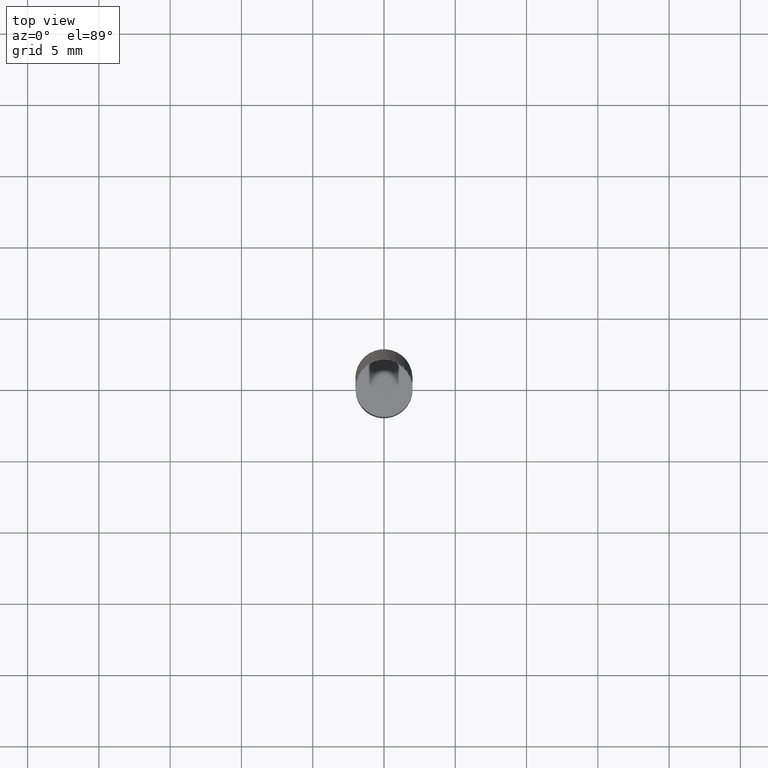
[diagram: clean part render]
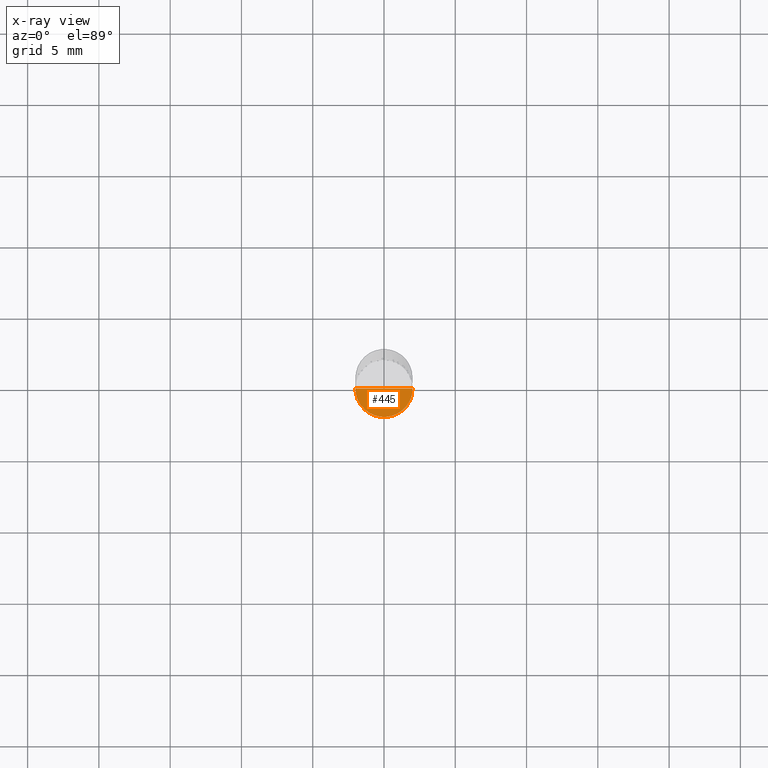
[diagram: x-ray — body ghosted, one internal face saturated and labeled with its STEP entity id]
A machine part, top view, then the same camera in x-ray: the body is ghosted and one INTERNAL B-rep face — a face not visible from any outside direction — is saturated and labeled: STEP entity #445.
In plain terms, the highlighted face is a freeform B-spline surface patch.
Its self-contained STEP definition (entity closure, byte-faithful):
#297=CARTESIAN_POINT('',(2.0,0.0,-5.0));
#301=CARTESIAN_POINT('',(-2.0,0.0,-5.0));
#302=CARTESIAN_POINT('',(0.0,0.0,-5.0));
#309=CARTESIAN_POINT('',(-2.0,-2.0,-5.0));
#310=CARTESIAN_POINT('',(0.0,-2.0,-5.0));
#311=CARTESIAN_POINT('',(2.0,-2.0,-5.0));
#430=(
BOUNDED_SURFACE()
B_SPLINE_SURFACE(1,2,(
(#301,#309,#310,#311,#297),
(#302,#302,#302,#302,#302)
), .UNSPECIFIED.,.F.,.F.,.F.)
B_SPLINE_SURFACE_WITH_KNOTS((2,2),(3,2,3),(
0.0,1.0),(
0.0,0.5,1.0), .UNSPECIFIED.)
GEOMETRIC_REPRESENTATION_ITEM()
RATIONAL_B_SPLINE_SURFACE(((1.0,0.707106781187,1.0,0.707106781187,1.0),
(1.0,0.707106781187,1.0,0.707106781187,1.0)
))
REPRESENTATION_ITEM('')
SURFACE()
);
#431=(
BOUNDED_CURVE()
B_SPLINE_CURVE(2,(#297,#311,#310,#309,#301),.UNSPECIFIED.,.F.,.F.)
B_SPLINE_CURVE_WITH_KNOTS((3,2,3),
(0.0,0.5,1.0),.UNSPECIFIED.)
CURVE()
GEOMETRIC_REPRESENTATION_ITEM()
RATIONAL_B_SPLINE_CURVE((1.0,0.707106781187,1.0,0.707106781187,1.0))
REPRESENTATION_ITEM('')
);
#432=(
BOUNDED_CURVE()
B_SPLINE_CURVE(1,(#301,#302),.UNSPECIFIED.,.F.,.F.)
B_SPLINE_CURVE_WITH_KNOTS((2,2),
(0.0,1.0),.UNSPECIFIED.)
CURVE()
GEOMETRIC_REPRESENTATION_ITEM()
RATIONAL_B_SPLINE_CURVE((1.0,1.0))
REPRESENTATION_ITEM('')
);
#433=(
BOUNDED_CURVE()
B_SPLINE_CURVE(1,(#302,#297),.UNSPECIFIED.,.F.,.F.)
B_SPLINE_CURVE_WITH_KNOTS((2,2),
(0.0,1.0),.UNSPECIFIED.)
CURVE()
GEOMETRIC_REPRESENTATION_ITEM()
RATIONAL_B_SPLINE_CURVE((1.0,1.0))
REPRESENTATION_ITEM('')
);
#434=VERTEX_POINT('',#297);
#435=VERTEX_POINT('',#301);
#436=VERTEX_POINT('',#302);
#437=EDGE_CURVE('',#434,#435,#431,.T.);
#438=EDGE_CURVE('',#435,#436,#432,.T.);
#439=EDGE_CURVE('',#436,#434,#433,.T.);
#440=ORIENTED_EDGE('',*,*,#437,.T.);
#441=ORIENTED_EDGE('',*,*,#438,.T.);
#442=ORIENTED_EDGE('',*,*,#439,.T.);
#443=EDGE_LOOP('',(#440,#441,#442));
#444=FACE_OUTER_BOUND('',#443,.T.);
#445=ADVANCED_FACE('',(#444),#430,.T.);